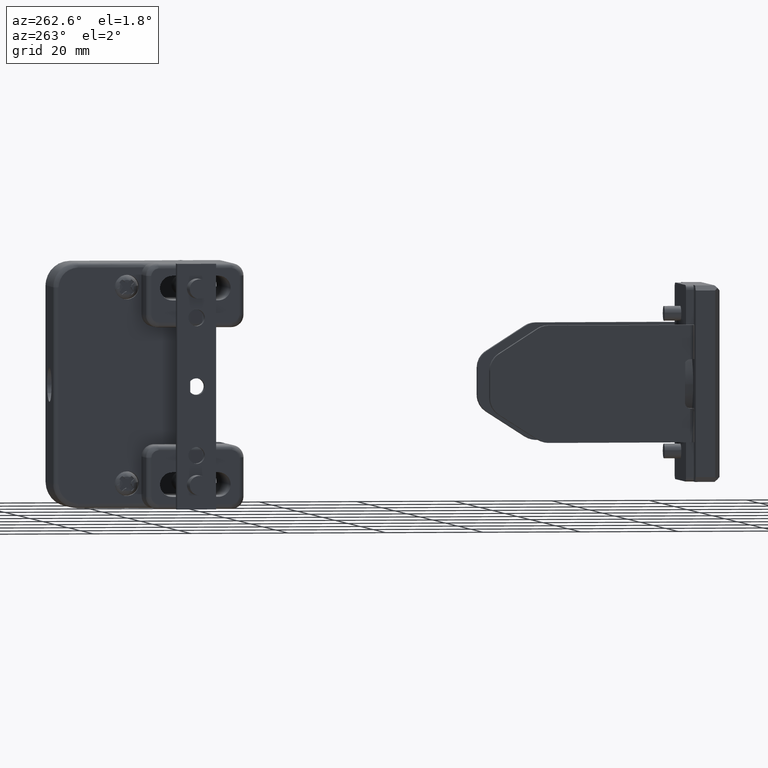
[diagram: clean part render]
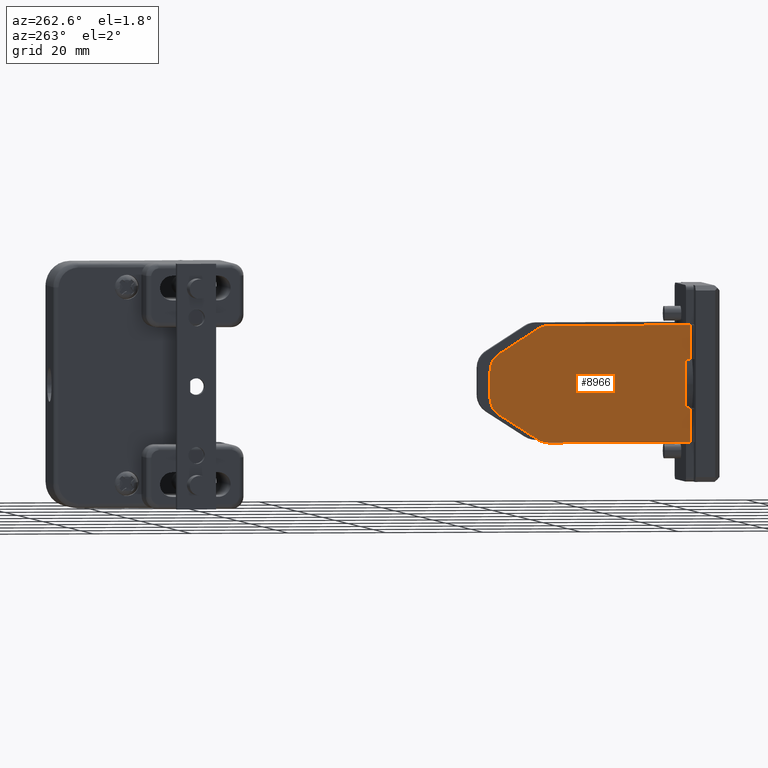
[diagram: same view with one face highlighted and labeled with its STEP entity id]
A machine part, auxiliary view. The second image highlights one B-rep face of the part: STEP entity #8966.
In plain terms, the highlighted face is a freeform B-spline surface patch.
Its self-contained STEP definition (entity closure, byte-faithful):
#7140=CARTESIAN_POINT('',(6.0,10.599990999999980,-5.0));
#7141=VERTEX_POINT('',#7140);
#7157=CARTESIAN_POINT('',(6.0,10.599990999999999,-11.949997000000000));
#7158=VERTEX_POINT('',#7157);
#7159=CARTESIAN_POINT('',(6.0,10.599990999999999,-11.949997000000000));
#7160=CARTESIAN_POINT('',(6.0,10.599990999999980,-5.0));
#7161=QUASI_UNIFORM_CURVE('',1,(#7159,#7160),.UNSPECIFIED.,.F.,.U.);
#7162=EDGE_CURVE('',#7158,#7141,#7161,.T.);
#7276=CARTESIAN_POINT('',(6.0,10.599990999999999,11.950004000000000));
#7277=VERTEX_POINT('',#7276);
#7293=CARTESIAN_POINT('',(6.0,10.599990999999980,5.0));
#7294=VERTEX_POINT('',#7293);
#7295=CARTESIAN_POINT('',(6.0,10.599990999999980,5.0));
#7296=CARTESIAN_POINT('',(6.0,10.599990999999999,11.950004000000000));
#7297=QUASI_UNIFORM_CURVE('',1,(#7295,#7296),.UNSPECIFIED.,.F.,.U.);
#7298=EDGE_CURVE('',#7294,#7277,#7297,.T.);
#7684=CARTESIAN_POINT('',(7.0,10.599990999999980,-4.0));
#7685=VERTEX_POINT('',#7684);
#7700=CARTESIAN_POINT('',(7.0,10.599990999999980,4.0));
#7701=VERTEX_POINT('',#7700);
#7707=CARTESIAN_POINT('',(7.0,10.599990999999980,-4.0));
#7708=CARTESIAN_POINT('',(7.0,10.599990999999980,4.0));
#7709=QUASI_UNIFORM_CURVE('',1,(#7707,#7708),.UNSPECIFIED.,.F.,.U.);
#7710=EDGE_CURVE('',#7685,#7701,#7709,.T.);
#8390=CARTESIAN_POINT('',(47.0,10.599990999999980,2.814504000000000));
#8391=VERTEX_POINT('',#8390);
#8398=CARTESIAN_POINT('',(47.0,10.599990999999980,-2.814504000000000));
#8399=VERTEX_POINT('',#8398);
#8405=CARTESIAN_POINT('',(47.0,10.599990999999980,-2.814504000000000));
#8406=CARTESIAN_POINT('',(47.0,10.599990999999980,2.814504000000000));
#8407=QUASI_UNIFORM_CURVE('',1,(#8405,#8406),.UNSPECIFIED.,.F.,.U.);
#8408=EDGE_CURVE('',#8399,#8391,#8407,.T.);
#8468=CARTESIAN_POINT('',(45.160837000000001,10.599990999999980,-6.180626000000000));
#8469=VERTEX_POINT('',#8468);
#8475=CARTESIAN_POINT('',(45.160837000000001,10.599990999999980,-6.180626000000000));
#8476=CARTESIAN_POINT('',(47.0,10.599990999999978,-5.000000820889496));
#8477=CARTESIAN_POINT('',(47.0,10.599990999999980,-2.814504000000000));
#8485=(BOUNDED_CURVE()B_SPLINE_CURVE(2,(#8475,#8476,#8477),.UNSPECIFIED.,.F.,.U.)CURVE()GEOMETRIC_REPRESENTATION_ITEM()QUASI_UNIFORM_CURVE()RATIONAL_B_SPLINE_CURVE((1.0,0.877556081872240,1.0))REPRESENTATION_ITEM(''));
#8486=EDGE_CURVE('',#8469,#8399,#8485,.T.);
#8520=CARTESIAN_POINT('',(37.160837709802848,10.599990999999980,-11.316119456461420));
#8521=VERTEX_POINT('',#8520);
#8527=CARTESIAN_POINT('',(37.160837709802848,10.599990999999980,-11.316119456461420));
#8528=CARTESIAN_POINT('',(45.160837000000001,10.599990999999980,-6.180626000000000));
#8529=QUASI_UNIFORM_CURVE('',1,(#8527,#8528),.UNSPECIFIED.,.F.,.U.);
#8530=EDGE_CURVE('',#8521,#8469,#8529,.T.);
#8590=CARTESIAN_POINT('',(35.0,10.599990999999980,-11.949997000000000));
#8591=VERTEX_POINT('',#8590);
#8597=CARTESIAN_POINT('',(35.0,10.599990999999980,-11.949997000000000));
#8598=CARTESIAN_POINT('',(36.173392227769661,10.599990999999982,-11.949996999999998));
#8599=CARTESIAN_POINT('',(37.160837709802863,10.599990999999980,-11.316119456461429));
#8607=(BOUNDED_CURVE()B_SPLINE_CURVE(2,(#8597,#8598,#8599),.UNSPECIFIED.,.F.,.U.)CURVE()GEOMETRIC_REPRESENTATION_ITEM()QUASI_UNIFORM_CURVE()RATIONAL_B_SPLINE_CURVE((1.0,0.959565165612883,1.0))REPRESENTATION_ITEM(''));
#8608=EDGE_CURVE('',#8591,#8521,#8607,.T.);
#8646=CARTESIAN_POINT('',(6.0,10.599990999999999,-11.949997000000000));
#8647=CARTESIAN_POINT('',(35.0,10.599990999999980,-11.949997000000000));
#8648=QUASI_UNIFORM_CURVE('',1,(#8646,#8647),.UNSPECIFIED.,.F.,.U.);
#8649=EDGE_CURVE('',#7158,#8591,#8648,.T.);
#8690=CARTESIAN_POINT('',(35.0,10.599990999999980,11.950004000000000));
#8691=VERTEX_POINT('',#8690);
#8692=CARTESIAN_POINT('',(35.0,10.599990999999980,11.950004000000000));
#8693=CARTESIAN_POINT('',(6.0,10.599990999999999,11.950004000000000));
#8694=QUASI_UNIFORM_CURVE('',1,(#8692,#8693),.UNSPECIFIED.,.F.,.U.);
#8695=EDGE_CURVE('',#8691,#7277,#8694,.T.);
#8768=CARTESIAN_POINT('',(37.160839000000152,10.599990999999980,11.316125999999979));
#8769=VERTEX_POINT('',#8768);
#8775=CARTESIAN_POINT('',(37.160839000000152,10.599990999999980,11.316125999999979));
#8776=CARTESIAN_POINT('',(36.173392951257654,10.599990999999982,11.950003999999998));
#8777=CARTESIAN_POINT('',(35.0,10.599990999999980,11.950004000000000));
#8785=(BOUNDED_CURVE()B_SPLINE_CURVE(2,(#8775,#8776,#8777),.UNSPECIFIED.,.F.,.U.)CURVE()GEOMETRIC_REPRESENTATION_ITEM()QUASI_UNIFORM_CURVE()RATIONAL_B_SPLINE_CURVE((1.0,0.959565118733912,1.0))REPRESENTATION_ITEM(''));
#8786=EDGE_CURVE('',#8769,#8691,#8785,.T.);
#8820=CARTESIAN_POINT('',(45.160839000000102,10.599990999999980,6.180626000000000));
#8821=VERTEX_POINT('',#8820);
#8827=CARTESIAN_POINT('',(45.160839000000102,10.599990999999980,6.180626000000000));
#8828=CARTESIAN_POINT('',(37.160839000000152,10.599990999999980,11.316125999999979));
#8829=QUASI_UNIFORM_CURVE('',1,(#8827,#8828),.UNSPECIFIED.,.F.,.U.);
#8830=EDGE_CURVE('',#8821,#8769,#8829,.T.);
#8885=CARTESIAN_POINT('',(47.0,10.599990999999980,2.814504000000000));
#8886=CARTESIAN_POINT('',(47.000000000000007,10.599990999999978,4.999999728141244));
#8887=CARTESIAN_POINT('',(45.160839000000102,10.599990999999980,6.180626000000000));
#8895=(BOUNDED_CURVE()B_SPLINE_CURVE(2,(#8885,#8886,#8887),.UNSPECIFIED.,.F.,.U.)CURVE()GEOMETRIC_REPRESENTATION_ITEM()QUASI_UNIFORM_CURVE()RATIONAL_B_SPLINE_CURVE((1.0,0.877556182745237,1.0))REPRESENTATION_ITEM(''));
#8896=EDGE_CURVE('',#8391,#8821,#8895,.T.);
#8921=CARTESIAN_POINT('',(3.952050079465957,10.599990999999999,13.143808779271049));
#8922=CARTESIAN_POINT('',(49.047951020239744,10.599990999999999,13.143808779271049));
#8923=CARTESIAN_POINT('',(3.952050079465957,10.599990999999999,-13.143802634001700));
#8924=CARTESIAN_POINT('',(49.047951020239744,10.599990999999999,-13.143802634001700));
#8925=B_SPLINE_SURFACE_WITH_KNOTS('',1,1,((#8921,#8923),(#8922,#8924)),.UNSPECIFIED.,.F.,.F.,.U.,(2,2),(2,2),(0.0,45.095900940773788),(0.0,26.287611413272749),.UNSPECIFIED.);
#8926=ORIENTED_EDGE('',*,*,#8649,.F.);
#8927=ORIENTED_EDGE('',*,*,#7162,.T.);
#8928=CARTESIAN_POINT('',(6.0,10.599990999999980,-5.0));
#8929=CARTESIAN_POINT('',(6.999999999999999,10.599990999999980,-5.000000000000001));
#8930=CARTESIAN_POINT('',(7.0,10.599990999999980,-4.0));
#8938=(BOUNDED_CURVE()B_SPLINE_CURVE(2,(#8928,#8929,#8930),.UNSPECIFIED.,.F.,.U.)CURVE()GEOMETRIC_REPRESENTATION_ITEM()QUASI_UNIFORM_CURVE()RATIONAL_B_SPLINE_CURVE((1.0,0.707106781186548,1.0))REPRESENTATION_ITEM(''));
#8939=EDGE_CURVE('',#7141,#7685,#8938,.T.);
#8940=ORIENTED_EDGE('',*,*,#8939,.T.);
#8941=ORIENTED_EDGE('',*,*,#7710,.T.);
#8942=CARTESIAN_POINT('',(7.0,10.599990999999980,4.0));
#8943=CARTESIAN_POINT('',(6.999999999999999,10.599990999999980,5.000000000000001));
#8944=CARTESIAN_POINT('',(6.0,10.599990999999980,5.0));
#8952=(BOUNDED_CURVE()B_SPLINE_CURVE(2,(#8942,#8943,#8944),.UNSPECIFIED.,.F.,.U.)CURVE()GEOMETRIC_REPRESENTATION_ITEM()QUASI_UNIFORM_CURVE()RATIONAL_B_SPLINE_CURVE((1.0,0.707106781186548,1.0))REPRESENTATION_ITEM(''));
#8953=EDGE_CURVE('',#7701,#7294,#8952,.T.);
#8954=ORIENTED_EDGE('',*,*,#8953,.T.);
#8955=ORIENTED_EDGE('',*,*,#7298,.T.);
#8956=ORIENTED_EDGE('',*,*,#8695,.F.);
#8957=ORIENTED_EDGE('',*,*,#8786,.F.);
#8958=ORIENTED_EDGE('',*,*,#8830,.F.);
#8959=ORIENTED_EDGE('',*,*,#8896,.F.);
#8960=ORIENTED_EDGE('',*,*,#8408,.F.);
#8961=ORIENTED_EDGE('',*,*,#8486,.F.);
#8962=ORIENTED_EDGE('',*,*,#8530,.F.);
#8963=ORIENTED_EDGE('',*,*,#8608,.F.);
#8964=EDGE_LOOP('',(#8926,#8927,#8940,#8941,#8954,#8955,#8956,#8957,#8958,#8959,#8960,#8961,#8962,#8963));
#8965=FACE_OUTER_BOUND('',#8964,.T.);
#8966=ADVANCED_FACE('',(#8965),#8925,.T.);